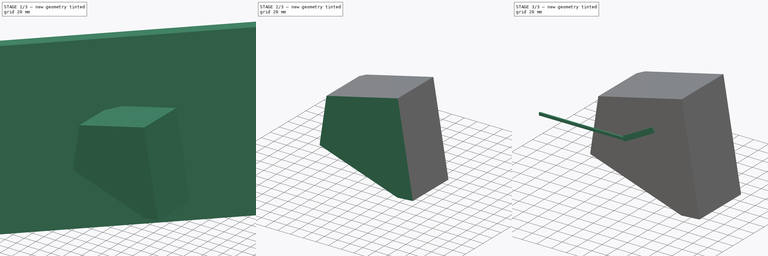
[diagram: build sequence overview — one tinted view per stage of 3, left to right]
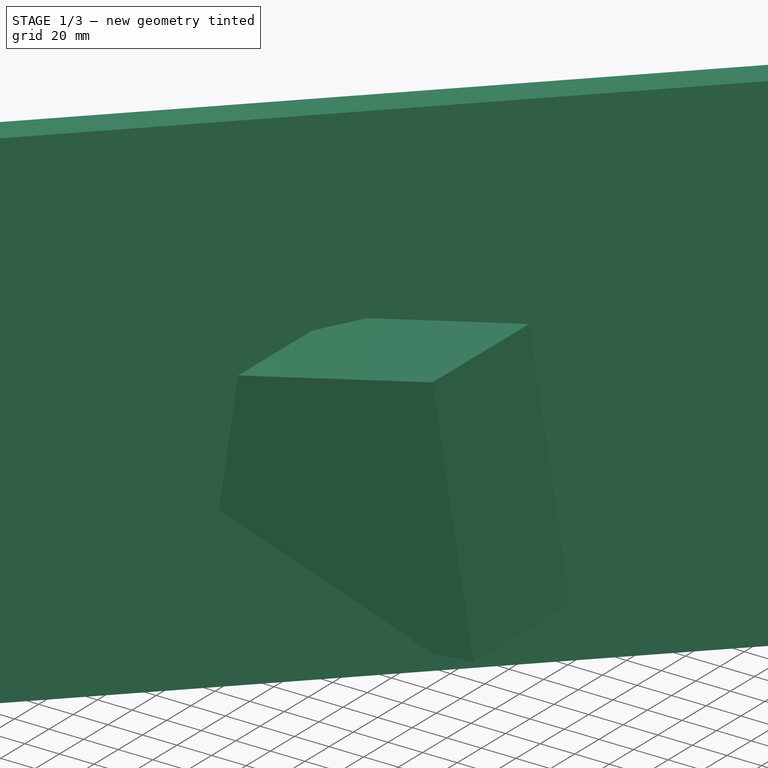
[diagram: stage 1 of 3 — iso view after this stage's code; geometry added in this stage tinted green]
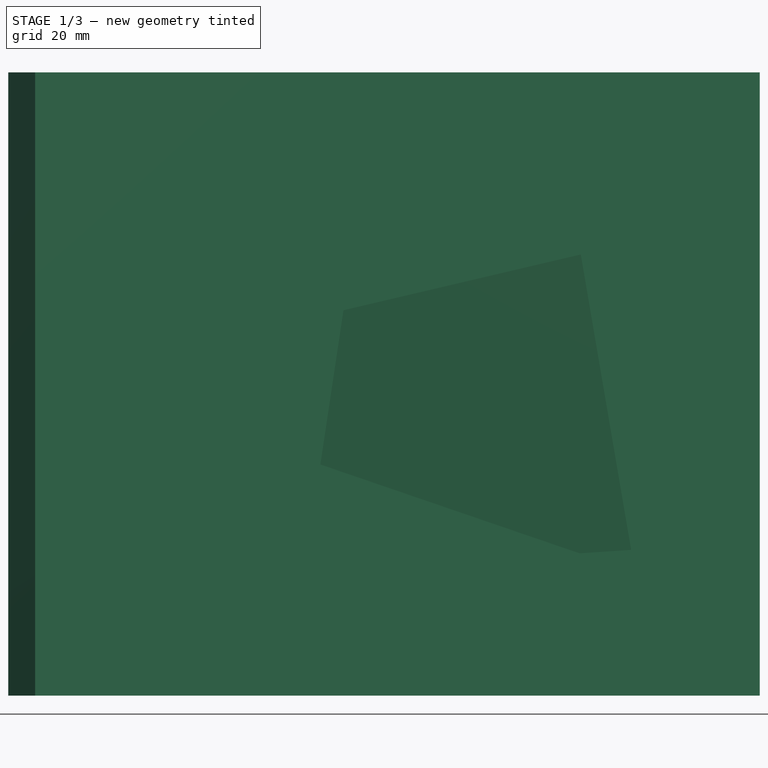
[diagram: stage 1 of 3 — front view after this stage's code; geometry added in this stage tinted green]
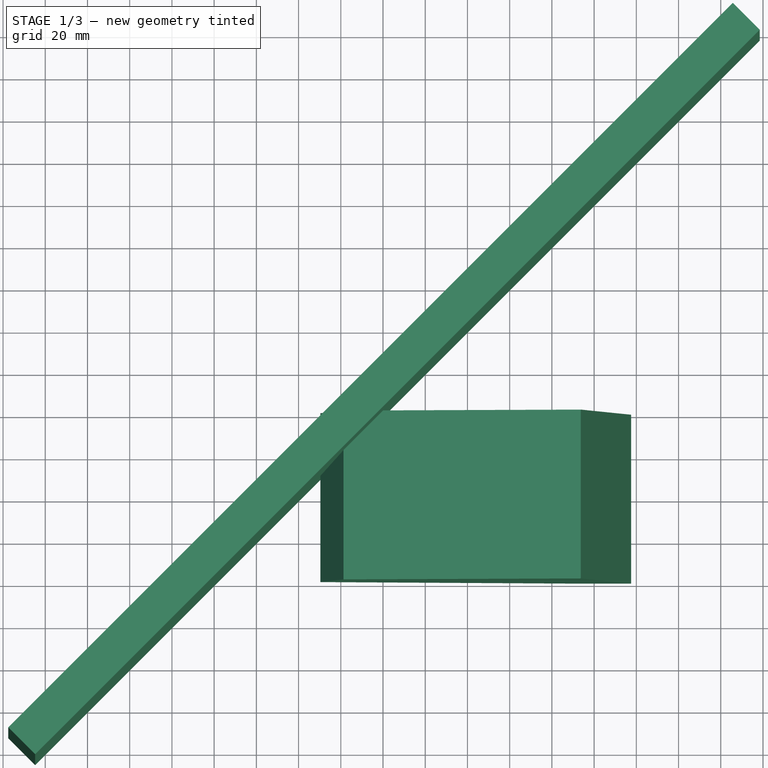
[diagram: stage 1 of 3 — top view after this stage's code; geometry added in this stage tinted green]
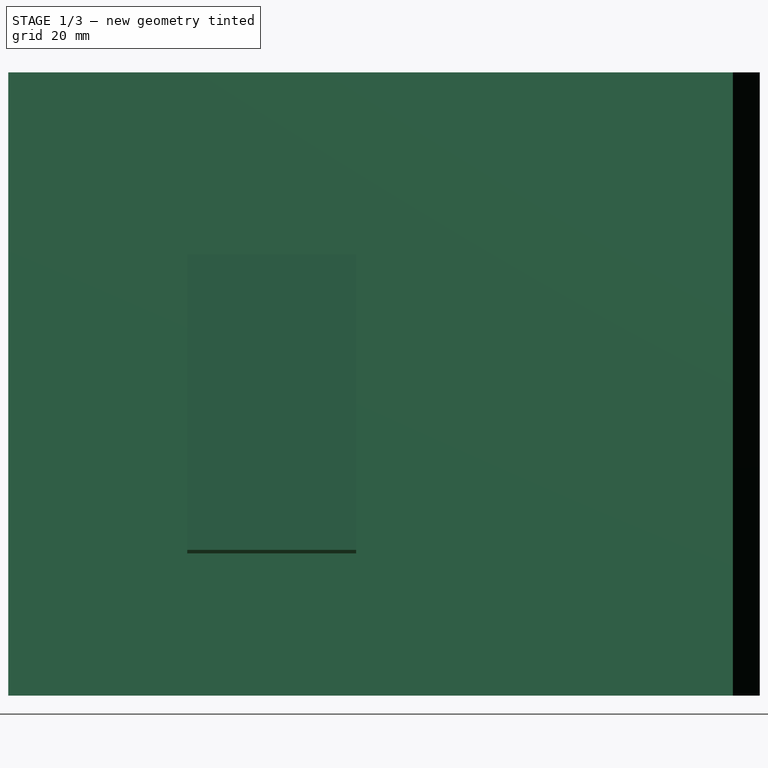
[diagram: stage 1 of 3 — right view after this stage's code; geometry added in this stage tinted green]
FCSTD DOCUMENT  (FreeCAD 0.20R29177 +426 (Git))
Label: wall_clock_cut
License: All rights reserved
LicenseURL: http://en.wikipedia.org/wiki/All_rights_reserved
objects: Sketcher::SketchObject×4, PartDesign::Pad×4, PartDesign::Body×4, App::MeasureDistance×2, Part::Part2DObjectPython×1, Part::Cut×1
note: 18 computed .brp shape members not serialized (recipe doc carries the construction recipe); baked Part::Feature solids carry a one-line shape summary decoded from their .brp

FEATURE [PartDesign::Body] Body002  label="mins"
  Group = -> [Sketch001,Pad001]
  Origin = -> Origin002
  Tip = -> Pad001
FEATURE [Sketcher::SketchObject] Sketch002
  AttachmentOffset = pos=(0,0,0) rot=(0,1,0;0.785398rad)
  FullyConstrained = false
  MapMode = 5
  Placement = pos=(0,0,0) rot=(0.862856,0.357407,0.357407;1.71777rad)
  Support = -> [XZ_Plane]
  sketch-geometry (4):
    g0: LineSegment StartX=-233.045 StartY=151.312 StartZ=0 EndX=252.362 EndY=151.312 EndZ=0
    g1: LineSegment StartX=252.362 StartY=151.312 StartZ=0 EndX=252.362 EndY=-143.906 EndZ=0
    g2: LineSegment StartX=252.362 StartY=-143.906 StartZ=0 EndX=-233.045 EndY=-143.906 EndZ=0
    g3: LineSegment StartX=-233.045 StartY=-143.906 StartZ=0 EndX=-233.045 EndY=151.312 EndZ=0
  constraints (8):
    c: Coincident(g0,g1)
    c: Coincident(g1,g2)
    c: Coincident(g2,g3)
    c: Coincident(g3,g0)
    c: Horizontal(g0)
    c: Horizontal(g2)
    c: Vertical(g1)
    c: Vertical(g3)
FEATURE [PartDesign::Pad] Pad002
  Direction = (0.707107,-0.707107,1e-16)
  Length = 18
  Length2 = 10
  Placement = pos=(0,0,0) rot=(1,0,0;1.5708rad)
  Profile = -> Sketch002
  ReferenceAxis = -> Sketch002 [N_Axis]
  Reversed = true
  Type = 0
FEATURE [PartDesign::Body] Body  label="wall"
  Group = -> [Sketch002,Pad002]
  Origin = -> Origin
  Placement = pos=(0,-3,0) rot=(0,0,1;0rad)
  Tip = -> Pad002
FEATURE [PartDesign::Pad] Pad
  Direction = (0,-1,-2e-16)
  Length = 80
  Length2 = 10
  Placement = pos=(0,0,0) rot=(1,0,0;1.5708rad)
  Profile = -> Sketch
  ReferenceAxis = -> Sketch [N_Axis]
  Type = 0
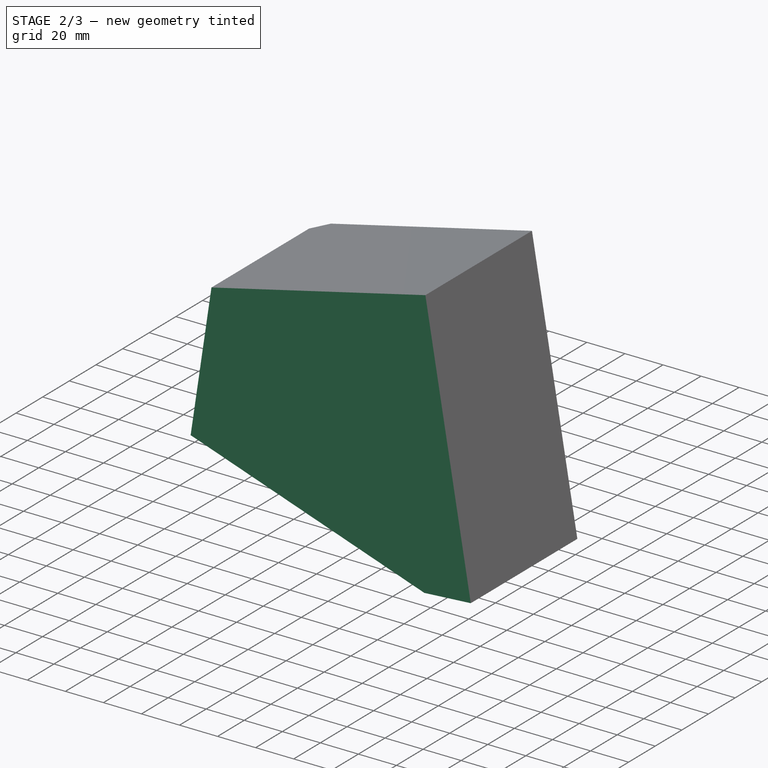
[diagram: stage 2 of 3 — iso view after this stage's code; geometry added in this stage tinted green]
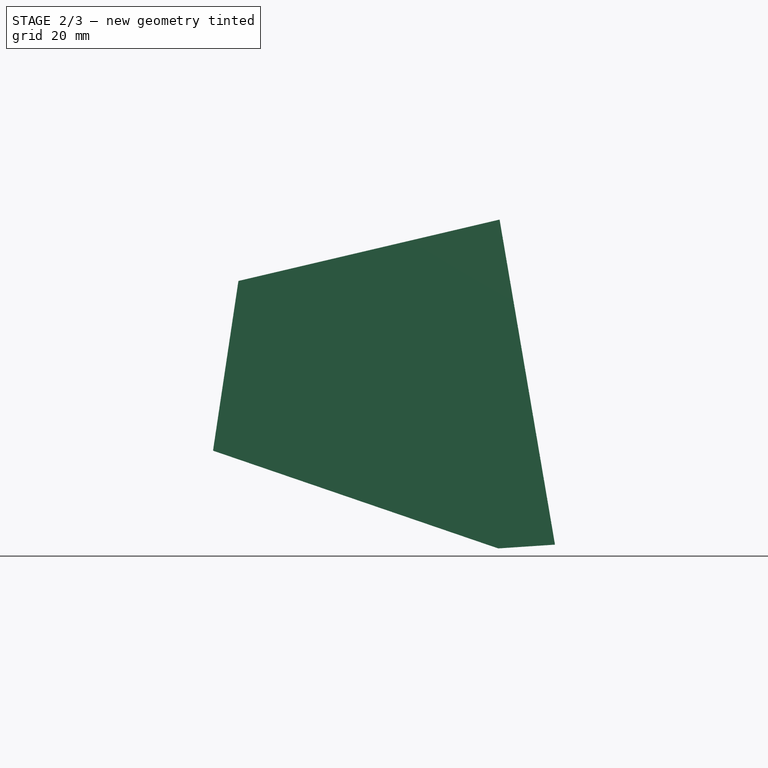
[diagram: stage 2 of 3 — front view after this stage's code; geometry added in this stage tinted green]
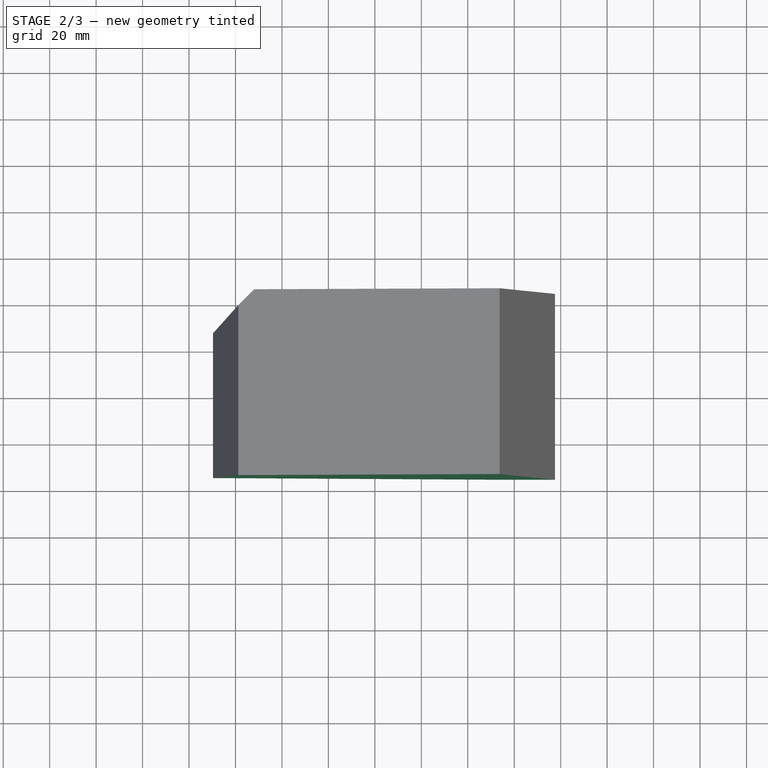
[diagram: stage 2 of 3 — top view after this stage's code; geometry added in this stage tinted green]
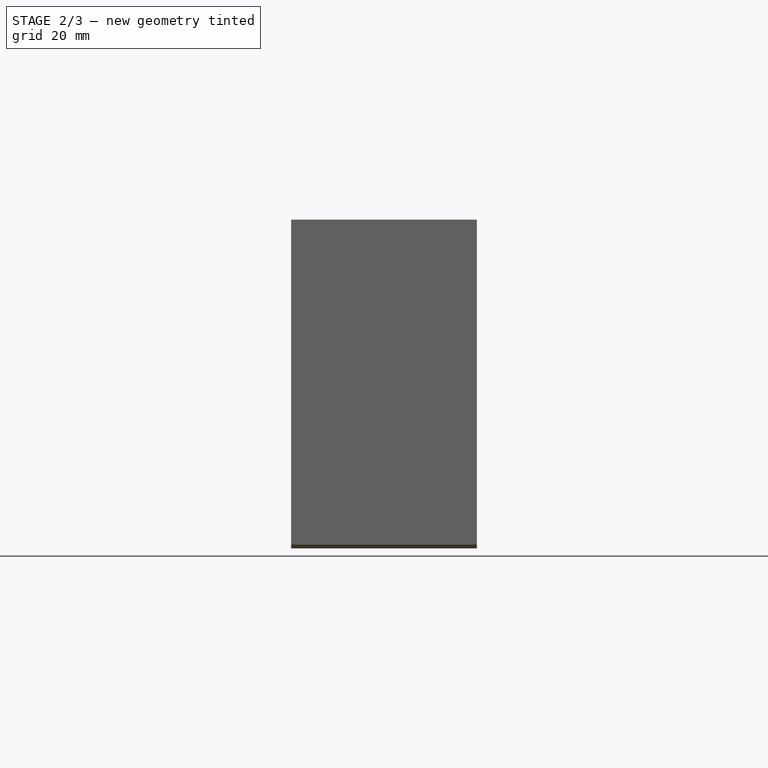
[diagram: stage 2 of 3 — right view after this stage's code; geometry added in this stage tinted green]
FEATURE [PartDesign::Body] Body003  label="hours"
  Group = -> [Sketch003,Pad003]
  Origin = -> Origin003
  Tip = -> Pad003
FEATURE [App::MeasureDistance] Distance001  label="Distance: 7.40 mm"
  Distance = 7.39647
  P1 = (-18.7473,-20.1615,38.656)
  P2 = (-13.5916,-15.0059,39.8998)
FEATURE [App::MeasureDistance] Distance  label="Distance: 21.42 mm"
  Distance = 21.4239
  P1 = (-14.9932,-14.9932,-39.5154)
  P2 = (-29.7121,-29.7121,-34.4463)
FEATURE [Part::Part2DObjectPython] Shape2DView  # Draft 2D object (typed FeaturePython)
  AutoUpdate = true
  Clip = false
  FuseArch = false
  HiddenLines = false
  InPlace = true
  OnlySolids = false
  Projection = (0,-1,0)
  ProjectionMode = 0
  SegmentLength = 0.05
  Tessellation = false
  VisibleOnly = false
FEATURE [Part::Cut] Cut
  Base = -> Body001
  Tool = -> Body
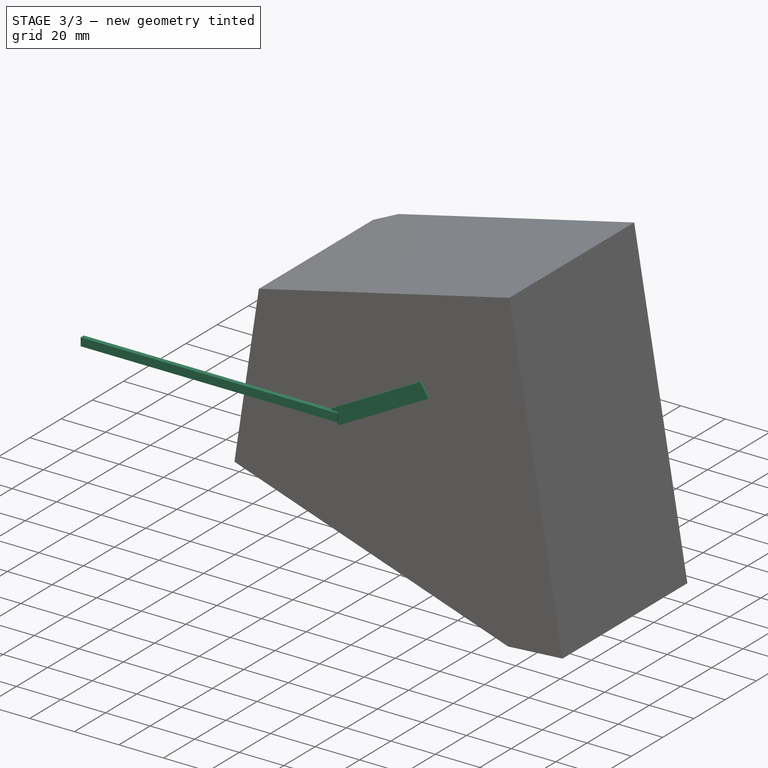
[diagram: stage 3 of 3 — iso view after this stage's code; geometry added in this stage tinted green]
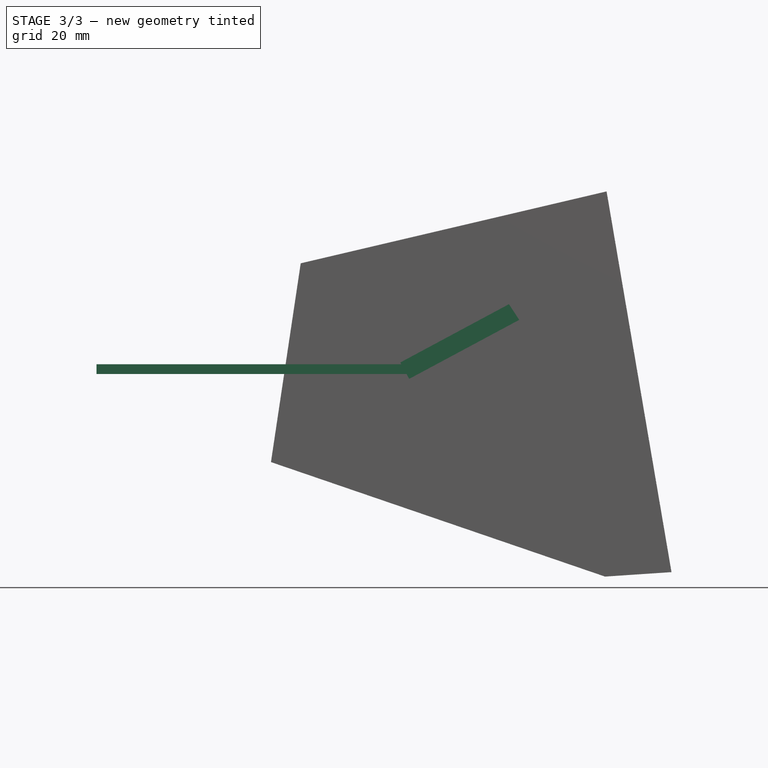
[diagram: stage 3 of 3 — front view after this stage's code; geometry added in this stage tinted green]
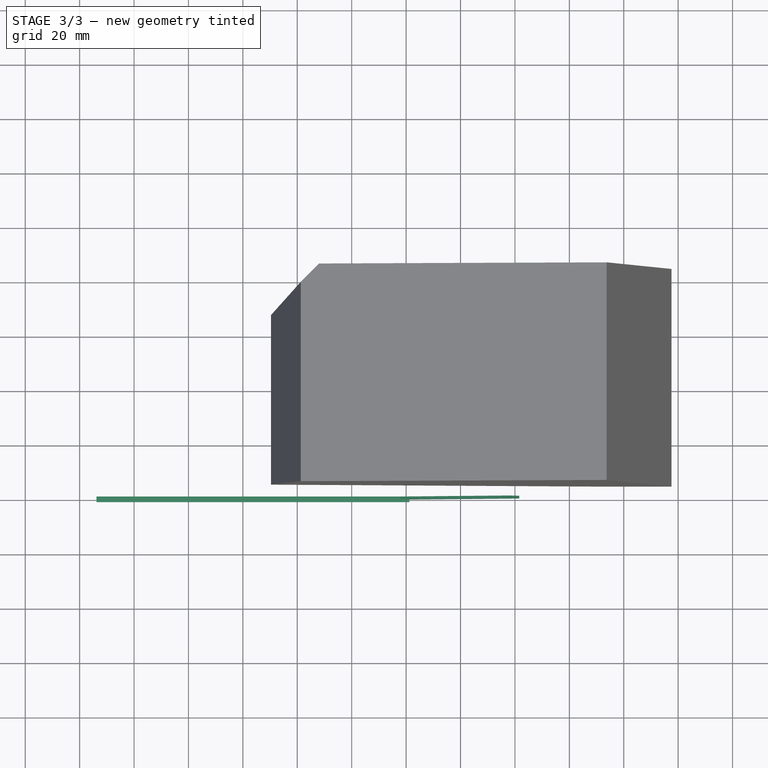
[diagram: stage 3 of 3 — top view after this stage's code; geometry added in this stage tinted green]
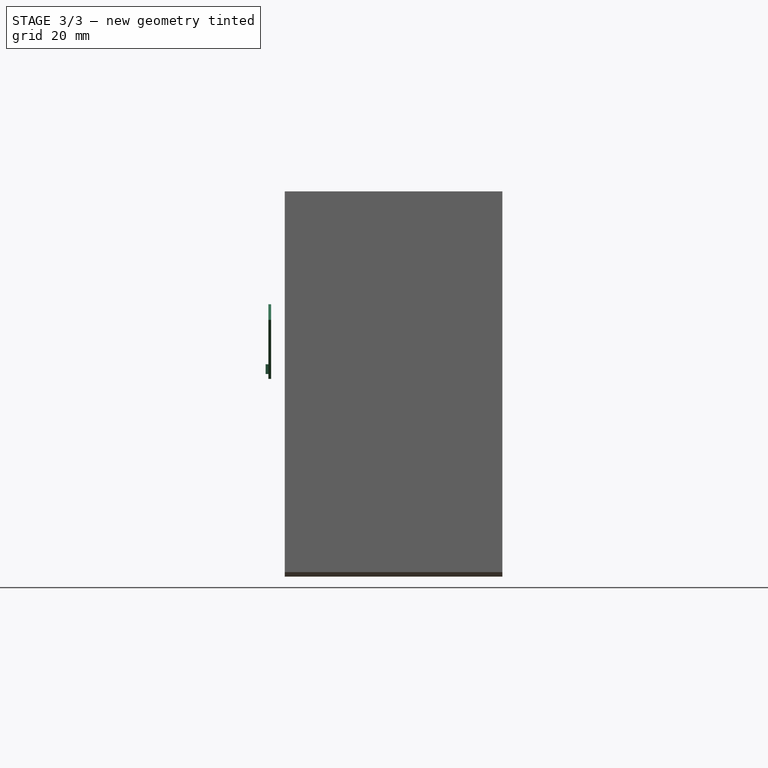
[diagram: stage 3 of 3 — right view after this stage's code; geometry added in this stage tinted green]
FEATURE [Sketcher::SketchObject] Sketch
  FullyConstrained = true
  MapMode = 5
  Placement = pos=(0,0,0) rot=(1,0,0;1.5708rad)
  Support = -> [XZ_Plane001]
  sketch-geometry (5):
    g0: LineSegment StartX=-18.736 StartY=38.6448 StartZ=0 EndX=93.691 EndY=65.0665 EndZ=0
    g1: LineSegment StartX=93.691 StartY=65.0665 StartZ=0 EndX=117.549 EndY=-74.8742 EndZ=0
    g2: LineSegment StartX=117.549 StartY=-74.8742 StartZ=0 EndX=93.1338 EndY=-76.5069 EndZ=0
    g3: LineSegment StartX=93.1338 StartY=-76.5069 StartZ=0 EndX=-29.675 EndY=-34.4209 EndZ=0
    g4: LineSegment StartX=-29.675 StartY=-34.4209 StartZ=0 EndX=-18.736 EndY=38.6448 EndZ=0
  constraints (13):
    c: Coincident(g1,g0)
    c: Coincident(g2,g1)
    c: Coincident(g3,g2)
    c: Coincident(g4,g3)
    c: Coincident(g4,g0)
    c: Distance(g0) = 115.49
    c: Distance(g1) = 141.96
    c: Distance(g2) = 24.47
    c: Distance(g3) = 129.82
    c: Distance(g4) = 73.88
    c: Angle(g0,g1) = 1.50884
    c: Angle(g4,g0) = 1.95023
    c: Block(g0)
FEATURE [Sketcher::SketchObject] Sketch001
  AttachmentOffset = pos=(0,0,100) rot=(0,0,1;0rad)
  FullyConstrained = false
  MapMode = 5
  Placement = pos=(0,-100,-2.22e-14) rot=(1,0,0;1.5708rad)
  Support = -> [XZ_Plane002]
  sketch-geometry (4):
    g0: LineSegment StartX=-93.7984 StartY=1.55484 StartZ=0 EndX=21.2016 EndY=1.55484 EndZ=0
    g1: LineSegment StartX=21.2016 StartY=1.55484 StartZ=0 EndX=21.2016 EndY=-2.06361 EndZ=0
    g2: LineSegment StartX=21.2016 StartY=-2.06361 StartZ=0 EndX=-93.7984 EndY=-2.06361 EndZ=0
    g3: LineSegment StartX=-93.7984 StartY=-2.06361 StartZ=0 EndX=-93.7984 EndY=1.55484 EndZ=0
  constraints (9):
    c: Coincident(g0,g1)
    c: Coincident(g1,g2)
    c: Coincident(g2,g3)
    c: Coincident(g3,g0)
    c: Horizontal(g0)
    c: Horizontal(g2)
    c: Vertical(g1)
    c: Vertical(g3)
    c: DistanceX(g0,g0) = 115
FEATURE [PartDesign::Pad] Pad001
  Direction = (0,-1,2e-16)
  Length = 2
  Length2 = 10
  Placement = pos=(0,0,0) rot=(1,0,0;1.5708rad)
  Profile = -> Sketch001
  ReferenceAxis = -> Sketch001 [N_Axis]
  Type = 0
FEATURE [PartDesign::Body] Body001  label="clock"
  Group = -> [Sketch,Pad]
  Origin = -> Origin001
  Placement = pos=(0,-15,0) rot=(0,0,1;0rad)
  Tip = -> Pad
FEATURE [Sketcher::SketchObject] Sketch003
  AttachmentOffset = pos=(0,0,100) rot=(0,0,1;0rad)
  FullyConstrained = false
  MapMode = 5
  Placement = pos=(0,-100,-2.22e-14) rot=(1,0,0;1.5708rad)
  Support = -> [XZ_Plane003]
  sketch-geometry (4):
    g0: LineSegment StartX=17.8651 StartY=2.18952 StartZ=0 EndX=21.1407 EndY=-3.83037 EndZ=0
    g1: LineSegment StartX=21.1407 StartY=-3.83037 StartZ=0 EndX=61.5979 EndY=17.859 EndZ=0
    g2: LineSegment StartX=61.5979 StartY=17.859 StartZ=0 EndX=57.7912 EndY=23.6133 EndZ=0
    g3: LineSegment StartX=57.7912 StartY=23.6133 StartZ=0 EndX=17.8651 EndY=2.18952 EndZ=0
  constraints (4):
    c: Coincident(g1,g0)
    c: Coincident(g3,g0)
    c: Coincident(g3,g2)
    c: Coincident(g2,g1)
FEATURE [PartDesign::Pad] Pad003
  Direction = (0,-1,2e-16)
  Length = 1
  Length2 = 10
  Placement = pos=(0,0,0) rot=(1,0,0;1.5708rad)
  Profile = -> Sketch003
  ReferenceAxis = -> Sketch003 [N_Axis]
  Type = 0
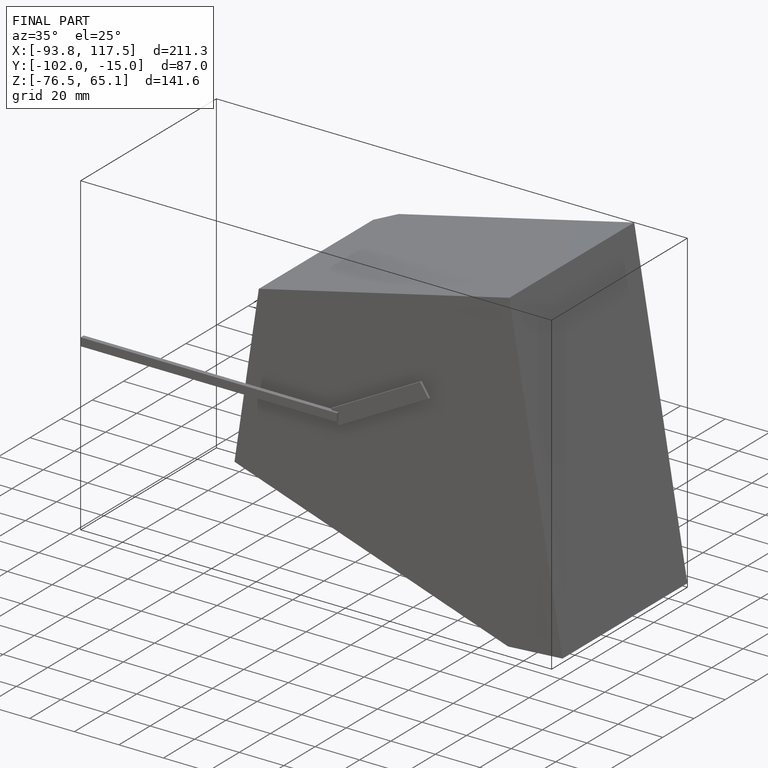
[diagram: finished part — iso view with bounding-box wireframe]
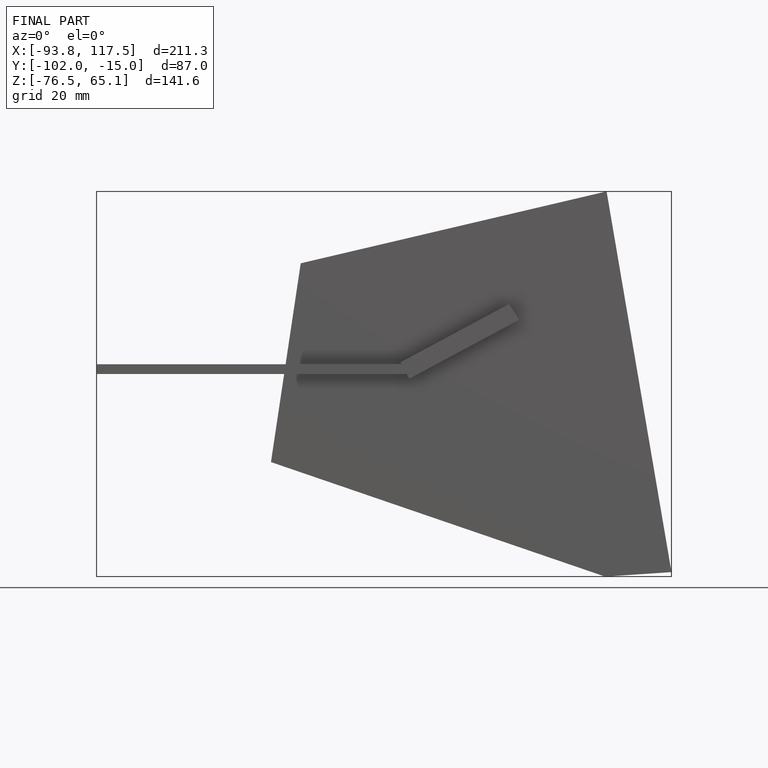
[diagram: finished part — front view with bounding-box wireframe]
